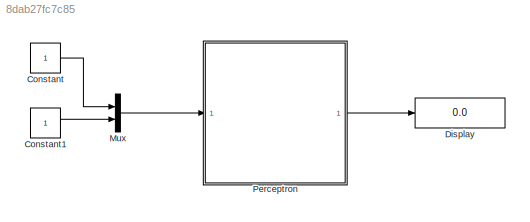
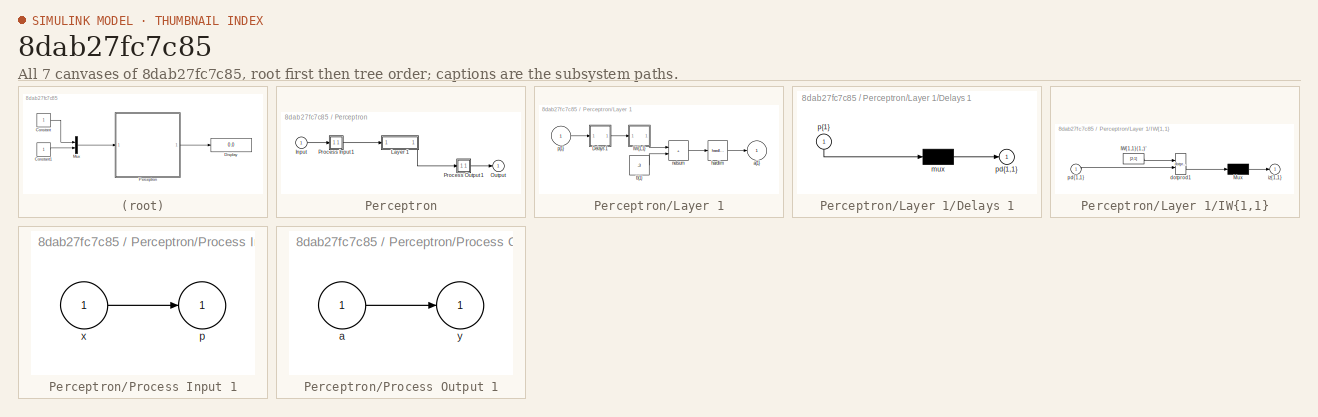
[diagram: thumbnail index - all 7 canvases of the model, root first then tree order]
MODEL slx_8dab27fc7c85
KIND model
CONFIG AbsTol = auto
CONFIG EnableMultiTasking = off
CONFIG FixedStep = auto
CONFIG MaxStep = auto
CONFIG MinStep = auto
CONFIG RelTol = 1e-3
CONFIG SampleTimeConstraint = Unconstrained
CONFIG SolverName = VariableStepAuto
CONFIG StartTime = 0.0
CONFIG StopTime = 10.0
BLOCK [Constant] Constant
BLOCK [Constant] Constant1
BLOCK [Display] Display
  Decimation = 1
  Ports = [1]
BLOCK [Mux] Mux
  DisplayOption = bar
  Inputs = 2
  Ports = [2, 1]
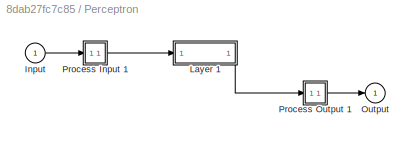
BLOCK [SubSystem] Perceptron
  Ports = [1, 1]
  RequestExecContextInheritance = off
BLOCK [Inport] Perceptron/Input
  PortDimensions = 2
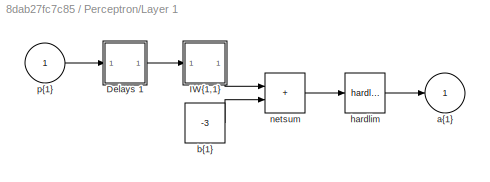
BLOCK [SubSystem] Perceptron/Layer 1
  Ports = [1, 1]
  RequestExecContextInheritance = off
BLOCK [SubSystem] Perceptron/Layer 1/Delays 1
  Ports = [1, 1]
  RequestExecContextInheritance = off
BLOCK [Mux] Perceptron/Layer 1/Delays 1/mux
  Inputs = 1
  Ports = [1, 1]
BLOCK [Outport] Perceptron/Layer 1/Delays 1/pd{1,1}
BLOCK [Inport] Perceptron/Layer 1/Delays 1/p{1}
  NameLocation = left
  PortDimensions = 2
BLOCK [SubSystem] Perceptron/Layer 1/IW{1,1}
  Ports = [1, 1]
  RequestExecContextInheritance = off
BLOCK [Constant] Perceptron/Layer 1/IW{1,1}/IW{1,1}(1,:)'
  Value = [2;1]
BLOCK [Mux] Perceptron/Layer 1/IW{1,1}/Mux
  Inputs = 1
  Ports = [1, 1]
BLOCK [Reference] Perceptron/Layer 1/IW{1,1}/dotprod1  REF=neural/Weight Functions/dotprod
  Ports = [2, 1]
  SourceBlock = neural/Weight Functions/dotprod
  SourceProductBaseCode = NN
  SourceType = DOTPROD
BLOCK [Outport] Perceptron/Layer 1/IW{1,1}/iz{1,1}
BLOCK [Inport] Perceptron/Layer 1/IW{1,1}/pd{1,1}
  PortDimensions = 2
BLOCK [Outport] Perceptron/Layer 1/a{1}
  InitialOutput = 0
BLOCK [Constant] Perceptron/Layer 1/b{1}
  Value = -3
BLOCK [Reference] Perceptron/Layer 1/hardlim  REF=neural/Transfer Functions/hardlim
  Ports = [1, 1]
  SourceBlock = neural/Transfer Functions/hardlim
  SourceProductBaseCode = NN
  SourceType = HARDLIM
BLOCK [Sum] Perceptron/Layer 1/netsum
  IconShape = rectangular
  InputSameDT = on
  Inputs = 2
  OutDataTypeStr = Inherit: Same as first input
  Ports = [2, 1]
  SaturateOnIntegerOverflow = on
BLOCK [Inport] Perceptron/Layer 1/p{1}
  PortDimensions = 2
BLOCK [Outport] Perceptron/Output
  InitialOutput = 0
BLOCK [SubSystem] Perceptron/Process Input 1
  Ports = [1, 1]
  RequestExecContextInheritance = off
BLOCK [Outport] Perceptron/Process Input 1/p
  PortDimensions = 2
BLOCK [Inport] Perceptron/Process Input 1/x
  PortDimensions = 2
BLOCK [SubSystem] Perceptron/Process Output 1
  Ports = [1, 1]
  RequestExecContextInheritance = off
BLOCK [Inport] Perceptron/Process Output 1/a
  PortDimensions = 1
BLOCK [Outport] Perceptron/Process Output 1/y
  PortDimensions = 1
LINE Constant1:1 -> Mux:2
LINE Constant:1 -> Mux:1
LINE Mux:1 -> Perceptron:1
LINE Perceptron/Input:1 -> Perceptron/Process Input 1:1
LINE Perceptron/Layer 1/Delays 1/mux:1 -> Perceptron/Layer 1/Delays 1/pd{1,1}:1
LINE Perceptron/Layer 1/Delays 1/p{1}:1 -> Perceptron/Layer 1/Delays 1/mux:1
LINE Perceptron/Layer 1/Delays 1:1 -> Perceptron/Layer 1/IW{1,1}:1
LINE Perceptron/Layer 1/IW{1,1}/IW{1,1}(1,:)':1 -> Perceptron/Layer 1/IW{1,1}/dotprod1:1
LINE Perceptron/Layer 1/IW{1,1}/Mux:1 -> Perceptron/Layer 1/IW{1,1}/iz{1,1}:1
LINE Perceptron/Layer 1/IW{1,1}/dotprod1:1 -> Perceptron/Layer 1/IW{1,1}/Mux:1
LINE Perceptron/Layer 1/IW{1,1}/pd{1,1}:1 -> Perceptron/Layer 1/IW{1,1}/dotprod1:2
LINE Perceptron/Layer 1/IW{1,1}:1 -> Perceptron/Layer 1/netsum:1
LINE Perceptron/Layer 1/b{1}:1 -> Perceptron/Layer 1/netsum:2
LINE Perceptron/Layer 1/hardlim:1 -> Perceptron/Layer 1/a{1}:1
LINE Perceptron/Layer 1/netsum:1 -> Perceptron/Layer 1/hardlim:1
LINE Perceptron/Layer 1/p{1}:1 -> Perceptron/Layer 1/Delays 1:1
LINE Perceptron/Layer 1:1 -> Perceptron/Process Output 1:1
LINE Perceptron/Process Input 1/x:1 -> Perceptron/Process Input 1/p:1
LINE Perceptron/Process Input 1:1 -> Perceptron/Layer 1:1
LINE Perceptron/Process Output 1/a:1 -> Perceptron/Process Output 1/y:1
LINE Perceptron/Process Output 1:1 -> Perceptron/Output:1
LINE Perceptron:1 -> Display:1
